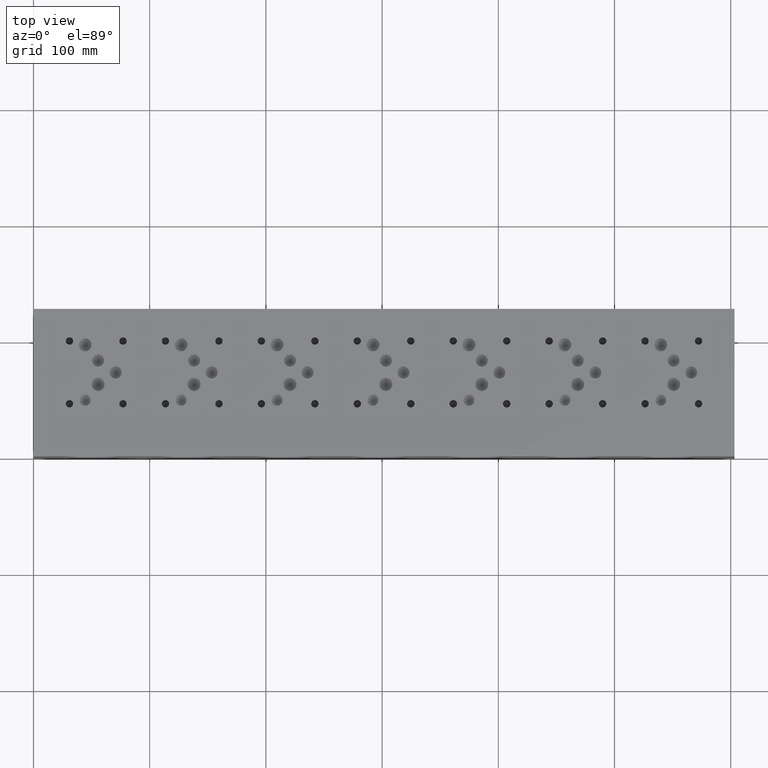
[diagram: clean part render]
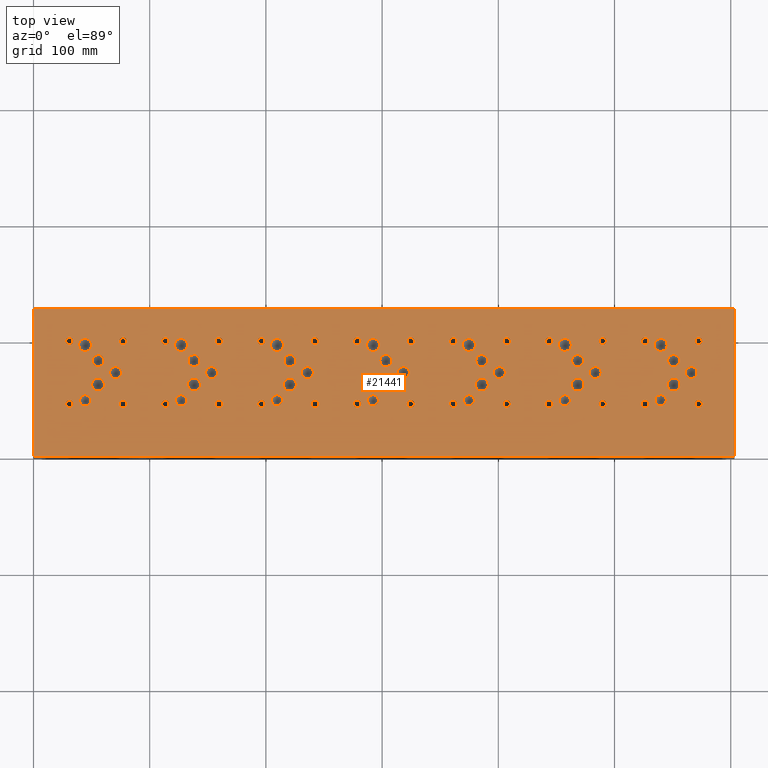
[diagram: same view with one face highlighted and labeled with its STEP entity id]
A machine part, top view. The second image highlights one B-rep face of the part: STEP entity #21441.
In plain terms, the highlighted planar face has unit normal (0, 0, 1).
Its self-contained STEP definition (entity closure, byte-faithful):
#803=CIRCLE('',#22593,4.7625);
#804=CIRCLE('',#22594,4.7625);
#807=CIRCLE('',#22599,4.7625);
#808=CIRCLE('',#22600,4.7625);
#811=CIRCLE('',#22605,4.7625);
#812=CIRCLE('',#22606,4.7625);
#815=CIRCLE('',#22611,4.7625);
#816=CIRCLE('',#22612,4.7625);
#819=CIRCLE('',#22617,4.7625);
#820=CIRCLE('',#22618,4.7625);
#823=CIRCLE('',#22623,4.7625);
#824=CIRCLE('',#22624,4.7625);
#827=CIRCLE('',#22629,4.7625);
#828=CIRCLE('',#22630,4.7625);
#831=CIRCLE('',#22635,5.5626);
#832=CIRCLE('',#22636,5.5626);
#835=CIRCLE('',#22641,5.5626);
#836=CIRCLE('',#22642,5.5626);
#839=CIRCLE('',#22647,5.5626);
#840=CIRCLE('',#22648,5.5626);
#843=CIRCLE('',#22653,5.5626);
#844=CIRCLE('',#22654,5.5626);
#847=CIRCLE('',#22659,5.5626);
#848=CIRCLE('',#22660,5.5626);
#851=CIRCLE('',#22665,5.5626);
#852=CIRCLE('',#22666,5.5626);
#855=CIRCLE('',#22671,5.5626);
#856=CIRCLE('',#22672,5.5626);
#859=CIRCLE('',#22677,5.5626);
#860=CIRCLE('',#22678,5.5626);
#863=CIRCLE('',#22683,5.5626);
#864=CIRCLE('',#22684,5.5626);
#867=CIRCLE('',#22689,5.5626);
#868=CIRCLE('',#22690,5.5626);
#871=CIRCLE('',#22695,5.5626);
#872=CIRCLE('',#22696,5.5626);
#875=CIRCLE('',#22701,5.5626);
#876=CIRCLE('',#22702,5.5626);
#879=CIRCLE('',#22707,5.5626);
#880=CIRCLE('',#22708,5.5626);
#883=CIRCLE('',#22713,5.5626);
#884=CIRCLE('',#22714,5.5626);
#887=CIRCLE('',#22719,5.1562);
#888=CIRCLE('',#22720,5.1562);
#891=CIRCLE('',#22725,5.1562);
#892=CIRCLE('',#22726,5.1562);
#895=CIRCLE('',#22731,5.1562);
#896=CIRCLE('',#22732,5.1562);
#899=CIRCLE('',#22737,5.1562);
#900=CIRCLE('',#22738,5.1562);
#903=CIRCLE('',#22743,5.1562);
#904=CIRCLE('',#22744,5.1562);
#907=CIRCLE('',#22749,5.1562);
#908=CIRCLE('',#22750,5.1562);
#911=CIRCLE('',#22755,5.1562);
#912=CIRCLE('',#22756,5.1562);
#915=CIRCLE('',#22761,5.1562);
#916=CIRCLE('',#22762,5.1562);
#919=CIRCLE('',#22767,5.1562);
#920=CIRCLE('',#22768,5.1562);
#923=CIRCLE('',#22773,5.1562);
#924=CIRCLE('',#22774,5.1562);
#927=CIRCLE('',#22779,5.1562);
#928=CIRCLE('',#22780,5.1562);
#931=CIRCLE('',#22785,5.1562);
#932=CIRCLE('',#22786,5.1562);
#935=CIRCLE('',#22791,5.1562);
#936=CIRCLE('',#22792,5.1562);
#939=CIRCLE('',#22797,5.1562);
#940=CIRCLE('',#22798,5.1562);
#946=CIRCLE('',#22807,3.175);
#947=CIRCLE('',#22808,3.175);
#953=CIRCLE('',#22818,3.175);
#954=CIRCLE('',#22819,3.175);
#960=CIRCLE('',#22829,3.175);
#961=CIRCLE('',#22830,3.175);
#967=CIRCLE('',#22840,3.175);
#968=CIRCLE('',#22841,3.175);
#974=CIRCLE('',#22851,3.175);
#975=CIRCLE('',#22852,3.175);
#981=CIRCLE('',#22862,3.175);
#982=CIRCLE('',#22863,3.175);
#988=CIRCLE('',#22873,3.175);
#989=CIRCLE('',#22874,3.175);
#995=CIRCLE('',#22884,3.175);
#996=CIRCLE('',#22885,3.175);
#1002=CIRCLE('',#22895,3.175);
#1003=CIRCLE('',#22896,3.175);
#1009=CIRCLE('',#22906,3.175);
#1010=CIRCLE('',#22907,3.175);
#1016=CIRCLE('',#22917,3.175);
#1017=CIRCLE('',#22918,3.175);
#1023=CIRCLE('',#22928,3.175);
#1024=CIRCLE('',#22929,3.175);
#1030=CIRCLE('',#22939,3.175);
#1031=CIRCLE('',#22940,3.175);
#1037=CIRCLE('',#22950,3.175);
#1038=CIRCLE('',#22951,3.175);
#1044=CIRCLE('',#22961,3.175);
#1045=CIRCLE('',#22962,3.175);
#1051=CIRCLE('',#22972,3.175);
#1052=CIRCLE('',#22973,3.175);
#1058=CIRCLE('',#22983,3.175);
#1059=CIRCLE('',#22984,3.175);
#1065=CIRCLE('',#22994,3.175);
#1066=CIRCLE('',#22995,3.175);
#1072=CIRCLE('',#23005,3.175);
#1073=CIRCLE('',#23006,3.175);
#1079=CIRCLE('',#23016,3.175);
#1080=CIRCLE('',#23017,3.175);
#1086=CIRCLE('',#23027,3.175);
#1087=CIRCLE('',#23028,3.175);
#1093=CIRCLE('',#23038,3.175);
#1094=CIRCLE('',#23039,3.175);
#1100=CIRCLE('',#23049,3.175);
#1101=CIRCLE('',#23050,3.175);
#1107=CIRCLE('',#23060,3.175);
#1108=CIRCLE('',#23061,3.175);
#1114=CIRCLE('',#23071,3.175);
#1115=CIRCLE('',#23072,3.175);
#1121=CIRCLE('',#23082,3.175);
#1122=CIRCLE('',#23083,3.175);
#1128=CIRCLE('',#23093,3.175);
#1129=CIRCLE('',#23094,3.175);
#1135=CIRCLE('',#23104,3.175);
#1136=CIRCLE('',#23105,3.175);
#1298=FACE_BOUND('',#4480,.T.);
#1299=FACE_BOUND('',#4481,.T.);
#1300=FACE_BOUND('',#4482,.T.);
#1301=FACE_BOUND('',#4483,.T.);
#1302=FACE_BOUND('',#4484,.T.);
#1303=FACE_BOUND('',#4485,.T.);
#1304=FACE_BOUND('',#4486,.T.);
#1305=FACE_BOUND('',#4487,.T.);
#1306=FACE_BOUND('',#4488,.T.);
#1307=FACE_BOUND('',#4489,.T.);
#1308=FACE_BOUND('',#4490,.T.);
#1309=FACE_BOUND('',#4491,.T.);
#1310=FACE_BOUND('',#4492,.T.);
#1311=FACE_BOUND('',#4493,.T.);
#1312=FACE_BOUND('',#4494,.T.);
#1313=FACE_BOUND('',#4495,.T.);
#1314=FACE_BOUND('',#4496,.T.);
#1315=FACE_BOUND('',#4497,.T.);
#1316=FACE_BOUND('',#4498,.T.);
#1317=FACE_BOUND('',#4499,.T.);
#1318=FACE_BOUND('',#4500,.T.);
#1319=FACE_BOUND('',#4501,.T.);
#1320=FACE_BOUND('',#4502,.T.);
#1321=FACE_BOUND('',#4503,.T.);
#1322=FACE_BOUND('',#4504,.T.);
#1323=FACE_BOUND('',#4505,.T.);
#1324=FACE_BOUND('',#4506,.T.);
#1325=FACE_BOUND('',#4507,.T.);
#1326=FACE_BOUND('',#4508,.T.);
#1327=FACE_BOUND('',#4509,.T.);
#1328=FACE_BOUND('',#4510,.T.);
#1329=FACE_BOUND('',#4511,.T.);
#1330=FACE_BOUND('',#4512,.T.);
#1331=FACE_BOUND('',#4513,.T.);
#1332=FACE_BOUND('',#4514,.T.);
#1333=FACE_BOUND('',#4515,.T.);
#1334=FACE_BOUND('',#4516,.T.);
#1335=FACE_BOUND('',#4517,.T.);
#1336=FACE_BOUND('',#4518,.T.);
#1337=FACE_BOUND('',#4519,.T.);
#1338=FACE_BOUND('',#4520,.T.);
#1339=FACE_BOUND('',#4521,.T.);
#1340=FACE_BOUND('',#4522,.T.);
#1341=FACE_BOUND('',#4523,.T.);
#1342=FACE_BOUND('',#4524,.T.);
#1343=FACE_BOUND('',#4525,.T.);
#1344=FACE_BOUND('',#4526,.T.);
#1345=FACE_BOUND('',#4527,.T.);
#1346=FACE_BOUND('',#4528,.T.);
#1347=FACE_BOUND('',#4529,.T.);
#1348=FACE_BOUND('',#4530,.T.);
#1349=FACE_BOUND('',#4531,.T.);
#1350=FACE_BOUND('',#4532,.T.);
#1351=FACE_BOUND('',#4533,.T.);
#1352=FACE_BOUND('',#4534,.T.);
#1353=FACE_BOUND('',#4535,.T.);
#1354=FACE_BOUND('',#4536,.T.);
#1355=FACE_BOUND('',#4537,.T.);
#1356=FACE_BOUND('',#4538,.T.);
#1357=FACE_BOUND('',#4539,.T.);
#1358=FACE_BOUND('',#4540,.T.);
#1359=FACE_BOUND('',#4541,.T.);
#1360=FACE_BOUND('',#4542,.T.);
#3182=FACE_OUTER_BOUND('',#4479,.T.);
#4479=EDGE_LOOP('',(#18988,#18989,#18990,#18991));
#4480=EDGE_LOOP('',(#18992,#18993));
#4481=EDGE_LOOP('',(#18994,#18995));
#4482=EDGE_LOOP('',(#18996,#18997));
#4483=EDGE_LOOP('',(#18998,#18999));
#4484=EDGE_LOOP('',(#19000,#19001));
#4485=EDGE_LOOP('',(#19002,#19003));
#4486=EDGE_LOOP('',(#19004,#19005));
#4487=EDGE_LOOP('',(#19006,#19007));
#4488=EDGE_LOOP('',(#19008,#19009));
#4489=EDGE_LOOP('',(#19010,#19011));
#4490=EDGE_LOOP('',(#19012,#19013));
#4491=EDGE_LOOP('',(#19014,#19015));
#4492=EDGE_LOOP('',(#19016,#19017));
#4493=EDGE_LOOP('',(#19018,#19019));
#4494=EDGE_LOOP('',(#19020,#19021));
#4495=EDGE_LOOP('',(#19022,#19023));
#4496=EDGE_LOOP('',(#19024,#19025));
#4497=EDGE_LOOP('',(#19026,#19027));
#4498=EDGE_LOOP('',(#19028,#19029));
#4499=EDGE_LOOP('',(#19030,#19031));
#4500=EDGE_LOOP('',(#19032,#19033));
#4501=EDGE_LOOP('',(#19034,#19035));
#4502=EDGE_LOOP('',(#19036,#19037));
#4503=EDGE_LOOP('',(#19038,#19039));
#4504=EDGE_LOOP('',(#19040,#19041));
#4505=EDGE_LOOP('',(#19042,#19043));
#4506=EDGE_LOOP('',(#19044,#19045));
#4507=EDGE_LOOP('',(#19046,#19047));
#4508=EDGE_LOOP('',(#19048,#19049));
#4509=EDGE_LOOP('',(#19050,#19051));
#4510=EDGE_LOOP('',(#19052,#19053));
#4511=EDGE_LOOP('',(#19054,#19055));
#4512=EDGE_LOOP('',(#19056,#19057));
#4513=EDGE_LOOP('',(#19058,#19059));
#4514=EDGE_LOOP('',(#19060,#19061));
#4515=EDGE_LOOP('',(#19062,#19063));
#4516=EDGE_LOOP('',(#19064,#19065));
#4517=EDGE_LOOP('',(#19066,#19067));
#4518=EDGE_LOOP('',(#19068,#19069));
#4519=EDGE_LOOP('',(#19070,#19071));
#4520=EDGE_LOOP('',(#19072,#19073));
#4521=EDGE_LOOP('',(#19074,#19075));
#4522=EDGE_LOOP('',(#19076,#19077));
#4523=EDGE_LOOP('',(#19078,#19079));
#4524=EDGE_LOOP('',(#19080,#19081));
#4525=EDGE_LOOP('',(#19082,#19083));
#4526=EDGE_LOOP('',(#19084,#19085));
#4527=EDGE_LOOP('',(#19086,#19087));
#4528=EDGE_LOOP('',(#19088,#19089));
#4529=EDGE_LOOP('',(#19090,#19091));
#4530=EDGE_LOOP('',(#19092,#19093));
#4531=EDGE_LOOP('',(#19094,#19095));
#4532=EDGE_LOOP('',(#19096,#19097));
#4533=EDGE_LOOP('',(#19098,#19099));
#4534=EDGE_LOOP('',(#19100,#19101));
#4535=EDGE_LOOP('',(#19102,#19103));
#4536=EDGE_LOOP('',(#19104,#19105));
#4537=EDGE_LOOP('',(#19106,#19107));
#4538=EDGE_LOOP('',(#19108,#19109));
#4539=EDGE_LOOP('',(#19110,#19111));
#4540=EDGE_LOOP('',(#19112,#19113));
#4541=EDGE_LOOP('',(#19114,#19115));
#4542=EDGE_LOOP('',(#19116,#19117));
#4601=LINE('',#28457,#6379);
#4664=LINE('',#28736,#6442);
#4955=LINE('',#30919,#6733);
#5978=LINE('',#35247,#7756);
#6379=VECTOR('',#23210,10.);
#6442=VECTOR('',#23325,10.);
#6733=VECTOR('',#23780,10.);
#7756=VECTOR('',#25749,10.);
#8150=VERTEX_POINT('',#28454);
#8151=VERTEX_POINT('',#28456);
#8212=VERTEX_POINT('',#28733);
#8213=VERTEX_POINT('',#28735);
#9777=VERTEX_POINT('',#36302);
#9778=VERTEX_POINT('',#36303);
#9782=VERTEX_POINT('',#36315);
#9783=VERTEX_POINT('',#36316);
#9787=VERTEX_POINT('',#36328);
#9788=VERTEX_POINT('',#36329);
#9792=VERTEX_POINT('',#36341);
#9793=VERTEX_POINT('',#36342);
#9797=VERTEX_POINT('',#36354);
#9798=VERTEX_POINT('',#36355);
#9802=VERTEX_POINT('',#36367);
#9803=VERTEX_POINT('',#36368);
#9807=VERTEX_POINT('',#36380);
#9808=VERTEX_POINT('',#36381);
#9812=VERTEX_POINT('',#36393);
#9813=VERTEX_POINT('',#36394);
#9817=VERTEX_POINT('',#36406);
#9818=VERTEX_POINT('',#36407);
#9822=VERTEX_POINT('',#36419);
#9823=VERTEX_POINT('',#36420);
#9827=VERTEX_POINT('',#36432);
#9828=VERTEX_POINT('',#36433);
#9832=VERTEX_POINT('',#36445);
#9833=VERTEX_POINT('',#36446);
#9837=VERTEX_POINT('',#36458);
#9838=VERTEX_POINT('',#36459);
#9842=VERTEX_POINT('',#36471);
#9843=VERTEX_POINT('',#36472);
#9847=VERTEX_POINT('',#36484);
#9848=VERTEX_POINT('',#36485);
#9852=VERTEX_POINT('',#36497);
#9853=VERTEX_POINT('',#36498);
#9857=VERTEX_POINT('',#36510);
#9858=VERTEX_POINT('',#36511);
#9862=VERTEX_POINT('',#36523);
#9863=VERTEX_POINT('',#36524);
#9867=VERTEX_POINT('',#36536);
#9868=VERTEX_POINT('',#36537);
#9872=VERTEX_POINT('',#36549);
#9873=VERTEX_POINT('',#36550);
#9877=VERTEX_POINT('',#36562);
#9878=VERTEX_POINT('',#36563);
#9882=VERTEX_POINT('',#36575);
#9883=VERTEX_POINT('',#36576);
#9887=VERTEX_POINT('',#36588);
#9888=VERTEX_POINT('',#36589);
#9892=VERTEX_POINT('',#36601);
#9893=VERTEX_POINT('',#36602);
#9897=VERTEX_POINT('',#36614);
#9898=VERTEX_POINT('',#36615);
#9902=VERTEX_POINT('',#36627);
#9903=VERTEX_POINT('',#36628);
#9907=VERTEX_POINT('',#36640);
#9908=VERTEX_POINT('',#36641);
#9912=VERTEX_POINT('',#36653);
#9913=VERTEX_POINT('',#36654);
#9917=VERTEX_POINT('',#36666);
#9918=VERTEX_POINT('',#36667);
#9922=VERTEX_POINT('',#36679);
#9923=VERTEX_POINT('',#36680);
#9927=VERTEX_POINT('',#36692);
#9928=VERTEX_POINT('',#36693);
#9932=VERTEX_POINT('',#36705);
#9933=VERTEX_POINT('',#36706);
#9937=VERTEX_POINT('',#36718);
#9938=VERTEX_POINT('',#36719);
#9942=VERTEX_POINT('',#36731);
#9943=VERTEX_POINT('',#36732);
#9947=VERTEX_POINT('',#36744);
#9948=VERTEX_POINT('',#36745);
#9955=VERTEX_POINT('',#36764);
#9956=VERTEX_POINT('',#36765);
#9963=VERTEX_POINT('',#36786);
#9964=VERTEX_POINT('',#36787);
#9971=VERTEX_POINT('',#36808);
#9972=VERTEX_POINT('',#36809);
#9979=VERTEX_POINT('',#36830);
#9980=VERTEX_POINT('',#36831);
#9987=VERTEX_POINT('',#36852);
#9988=VERTEX_POINT('',#36853);
#9995=VERTEX_POINT('',#36874);
#9996=VERTEX_POINT('',#36875);
#10003=VERTEX_POINT('',#36896);
#10004=VERTEX_POINT('',#36897);
#10011=VERTEX_POINT('',#36918);
#10012=VERTEX_POINT('',#36919);
#10019=VERTEX_POINT('',#36940);
#10020=VERTEX_POINT('',#36941);
#10027=VERTEX_POINT('',#36962);
#10028=VERTEX_POINT('',#36963);
#10035=VERTEX_POINT('',#36984);
#10036=VERTEX_POINT('',#36985);
#10043=VERTEX_POINT('',#37006);
#10044=VERTEX_POINT('',#37007);
#10051=VERTEX_POINT('',#37028);
#10052=VERTEX_POINT('',#37029);
#10059=VERTEX_POINT('',#37050);
#10060=VERTEX_POINT('',#37051);
#10067=VERTEX_POINT('',#37072);
#10068=VERTEX_POINT('',#37073);
#10075=VERTEX_POINT('',#37094);
#10076=VERTEX_POINT('',#37095);
#10083=VERTEX_POINT('',#37116);
#10084=VERTEX_POINT('',#37117);
#10091=VERTEX_POINT('',#37138);
#10092=VERTEX_POINT('',#37139);
#10099=VERTEX_POINT('',#37160);
#10100=VERTEX_POINT('',#37161);
#10107=VERTEX_POINT('',#37182);
#10108=VERTEX_POINT('',#37183);
#10115=VERTEX_POINT('',#37204);
#10116=VERTEX_POINT('',#37205);
#10123=VERTEX_POINT('',#37226);
#10124=VERTEX_POINT('',#37227);
#10131=VERTEX_POINT('',#37248);
#10132=VERTEX_POINT('',#37249);
#10139=VERTEX_POINT('',#37270);
#10140=VERTEX_POINT('',#37271);
#10147=VERTEX_POINT('',#37292);
#10148=VERTEX_POINT('',#37293);
#10155=VERTEX_POINT('',#37314);
#10156=VERTEX_POINT('',#37315);
#10163=VERTEX_POINT('',#37336);
#10164=VERTEX_POINT('',#37337);
#10171=VERTEX_POINT('',#37358);
#10172=VERTEX_POINT('',#37359);
#10247=EDGE_CURVE('',#8151,#8150,#4601,.T.);
#10333=EDGE_CURVE('',#8213,#8212,#4664,.T.);
#10816=EDGE_CURVE('',#8212,#8151,#4955,.T.);
#12168=EDGE_CURVE('',#8150,#8213,#5978,.T.);
#12669=EDGE_CURVE('',#9777,#9778,#803,.T.);
#12670=EDGE_CURVE('',#9778,#9777,#804,.T.);
#12675=EDGE_CURVE('',#9782,#9783,#807,.T.);
#12676=EDGE_CURVE('',#9783,#9782,#808,.T.);
#12681=EDGE_CURVE('',#9787,#9788,#811,.T.);
#12682=EDGE_CURVE('',#9788,#9787,#812,.T.);
#12687=EDGE_CURVE('',#9792,#9793,#815,.T.);
#12688=EDGE_CURVE('',#9793,#9792,#816,.T.);
#12693=EDGE_CURVE('',#9797,#9798,#819,.T.);
#12694=EDGE_CURVE('',#9798,#9797,#820,.T.);
#12699=EDGE_CURVE('',#9802,#9803,#823,.T.);
#12700=EDGE_CURVE('',#9803,#9802,#824,.T.);
#12705=EDGE_CURVE('',#9807,#9808,#827,.T.);
#12706=EDGE_CURVE('',#9808,#9807,#828,.T.);
#12711=EDGE_CURVE('',#9812,#9813,#831,.T.);
#12712=EDGE_CURVE('',#9813,#9812,#832,.T.);
#12717=EDGE_CURVE('',#9817,#9818,#835,.T.);
#12718=EDGE_CURVE('',#9818,#9817,#836,.T.);
#12723=EDGE_CURVE('',#9822,#9823,#839,.T.);
#12724=EDGE_CURVE('',#9823,#9822,#840,.T.);
#12729=EDGE_CURVE('',#9827,#9828,#843,.T.);
#12730=EDGE_CURVE('',#9828,#9827,#844,.T.);
#12735=EDGE_CURVE('',#9832,#9833,#847,.T.);
#12736=EDGE_CURVE('',#9833,#9832,#848,.T.);
#12741=EDGE_CURVE('',#9837,#9838,#851,.T.);
#12742=EDGE_CURVE('',#9838,#9837,#852,.T.);
#12747=EDGE_CURVE('',#9842,#9843,#855,.T.);
#12748=EDGE_CURVE('',#9843,#9842,#856,.T.);
#12753=EDGE_CURVE('',#9847,#9848,#859,.T.);
#12754=EDGE_CURVE('',#9848,#9847,#860,.T.);
#12759=EDGE_CURVE('',#9852,#9853,#863,.T.);
#12760=EDGE_CURVE('',#9853,#9852,#864,.T.);
#12765=EDGE_CURVE('',#9857,#9858,#867,.T.);
#12766=EDGE_CURVE('',#9858,#9857,#868,.T.);
#12771=EDGE_CURVE('',#9862,#9863,#871,.T.);
#12772=EDGE_CURVE('',#9863,#9862,#872,.T.);
#12777=EDGE_CURVE('',#9867,#9868,#875,.T.);
#12778=EDGE_CURVE('',#9868,#9867,#876,.T.);
#12783=EDGE_CURVE('',#9872,#9873,#879,.T.);
#12784=EDGE_CURVE('',#9873,#9872,#880,.T.);
#12789=EDGE_CURVE('',#9877,#9878,#883,.T.);
#12790=EDGE_CURVE('',#9878,#9877,#884,.T.);
#12795=EDGE_CURVE('',#9882,#9883,#887,.T.);
#12796=EDGE_CURVE('',#9883,#9882,#888,.T.);
#12801=EDGE_CURVE('',#9887,#9888,#891,.T.);
#12802=EDGE_CURVE('',#9888,#9887,#892,.T.);
#12807=EDGE_CURVE('',#9892,#9893,#895,.T.);
#12808=EDGE_CURVE('',#9893,#9892,#896,.T.);
#12813=EDGE_CURVE('',#9897,#9898,#899,.T.);
#12814=EDGE_CURVE('',#9898,#9897,#900,.T.);
#12819=EDGE_CURVE('',#9902,#9903,#903,.T.);
#12820=EDGE_CURVE('',#9903,#9902,#904,.T.);
#12825=EDGE_CURVE('',#9907,#9908,#907,.T.);
#12826=EDGE_CURVE('',#9908,#9907,#908,.T.);
#12831=EDGE_CURVE('',#9912,#9913,#911,.T.);
#12832=EDGE_CURVE('',#9913,#9912,#912,.T.);
#12837=EDGE_CURVE('',#9917,#9918,#915,.T.);
#12838=EDGE_CURVE('',#9918,#9917,#916,.T.);
#12843=EDGE_CURVE('',#9922,#9923,#919,.T.);
#12844=EDGE_CURVE('',#9923,#9922,#920,.T.);
#12849=EDGE_CURVE('',#9927,#9928,#923,.T.);
#12850=EDGE_CURVE('',#9928,#9927,#924,.T.);
#12855=EDGE_CURVE('',#9932,#9933,#927,.T.);
#12856=EDGE_CURVE('',#9933,#9932,#928,.T.);
#12861=EDGE_CURVE('',#9937,#9938,#931,.T.);
#12862=EDGE_CURVE('',#9938,#9937,#932,.T.);
#12867=EDGE_CURVE('',#9942,#9943,#935,.T.);
#12868=EDGE_CURVE('',#9943,#9942,#936,.T.);
#12873=EDGE_CURVE('',#9947,#9948,#939,.T.);
#12874=EDGE_CURVE('',#9948,#9947,#940,.T.);
#12882=EDGE_CURVE('',#9955,#9956,#946,.T.);
#12883=EDGE_CURVE('',#9956,#9955,#947,.T.);
#12892=EDGE_CURVE('',#9963,#9964,#953,.T.);
#12893=EDGE_CURVE('',#9964,#9963,#954,.T.);
#12902=EDGE_CURVE('',#9971,#9972,#960,.T.);
#12903=EDGE_CURVE('',#9972,#9971,#961,.T.);
#12912=EDGE_CURVE('',#9979,#9980,#967,.T.);
#12913=EDGE_CURVE('',#9980,#9979,#968,.T.);
#12922=EDGE_CURVE('',#9987,#9988,#974,.T.);
#12923=EDGE_CURVE('',#9988,#9987,#975,.T.);
#12932=EDGE_CURVE('',#9995,#9996,#981,.T.);
#12933=EDGE_CURVE('',#9996,#9995,#982,.T.);
#12942=EDGE_CURVE('',#10003,#10004,#988,.T.);
#12943=EDGE_CURVE('',#10004,#10003,#989,.T.);
#12952=EDGE_CURVE('',#10011,#10012,#995,.T.);
#12953=EDGE_CURVE('',#10012,#10011,#996,.T.);
#12962=EDGE_CURVE('',#10019,#10020,#1002,.T.);
#12963=EDGE_CURVE('',#10020,#10019,#1003,.T.);
#12972=EDGE_CURVE('',#10027,#10028,#1009,.T.);
#12973=EDGE_CURVE('',#10028,#10027,#1010,.T.);
#12982=EDGE_CURVE('',#10035,#10036,#1016,.T.);
#12983=EDGE_CURVE('',#10036,#10035,#1017,.T.);
#12992=EDGE_CURVE('',#10043,#10044,#1023,.T.);
#12993=EDGE_CURVE('',#10044,#10043,#1024,.T.);
#13002=EDGE_CURVE('',#10051,#10052,#1030,.T.);
#13003=EDGE_CURVE('',#10052,#10051,#1031,.T.);
#13012=EDGE_CURVE('',#10059,#10060,#1037,.T.);
#13013=EDGE_CURVE('',#10060,#10059,#1038,.T.);
#13022=EDGE_CURVE('',#10067,#10068,#1044,.T.);
#13023=EDGE_CURVE('',#10068,#10067,#1045,.T.);
#13032=EDGE_CURVE('',#10075,#10076,#1051,.T.);
#13033=EDGE_CURVE('',#10076,#10075,#1052,.T.);
#13042=EDGE_CURVE('',#10083,#10084,#1058,.T.);
#13043=EDGE_CURVE('',#10084,#10083,#1059,.T.);
#13052=EDGE_CURVE('',#10091,#10092,#1065,.T.);
#13053=EDGE_CURVE('',#10092,#10091,#1066,.T.);
#13062=EDGE_CURVE('',#10099,#10100,#1072,.T.);
#13063=EDGE_CURVE('',#10100,#10099,#1073,.T.);
#13072=EDGE_CURVE('',#10107,#10108,#1079,.T.);
#13073=EDGE_CURVE('',#10108,#10107,#1080,.T.);
#13082=EDGE_CURVE('',#10115,#10116,#1086,.T.);
#13083=EDGE_CURVE('',#10116,#10115,#1087,.T.);
#13092=EDGE_CURVE('',#10123,#10124,#1093,.T.);
#13093=EDGE_CURVE('',#10124,#10123,#1094,.T.);
#13102=EDGE_CURVE('',#10131,#10132,#1100,.T.);
#13103=EDGE_CURVE('',#10132,#10131,#1101,.T.);
#13112=EDGE_CURVE('',#10139,#10140,#1107,.T.);
#13113=EDGE_CURVE('',#10140,#10139,#1108,.T.);
#13122=EDGE_CURVE('',#10147,#10148,#1114,.T.);
#13123=EDGE_CURVE('',#10148,#10147,#1115,.T.);
#13132=EDGE_CURVE('',#10155,#10156,#1121,.T.);
#13133=EDGE_CURVE('',#10156,#10155,#1122,.T.);
#13142=EDGE_CURVE('',#10163,#10164,#1128,.T.);
#13143=EDGE_CURVE('',#10164,#10163,#1129,.T.);
#13152=EDGE_CURVE('',#10171,#10172,#1135,.T.);
#13153=EDGE_CURVE('',#10172,#10171,#1136,.T.);
#18988=ORIENTED_EDGE('',*,*,#10816,.T.);
#18989=ORIENTED_EDGE('',*,*,#10247,.T.);
#18990=ORIENTED_EDGE('',*,*,#12168,.T.);
#18991=ORIENTED_EDGE('',*,*,#10333,.T.);
#18992=ORIENTED_EDGE('',*,*,#12669,.T.);
#18993=ORIENTED_EDGE('',*,*,#12670,.T.);
#18994=ORIENTED_EDGE('',*,*,#12675,.T.);
#18995=ORIENTED_EDGE('',*,*,#12676,.T.);
#18996=ORIENTED_EDGE('',*,*,#12681,.T.);
#18997=ORIENTED_EDGE('',*,*,#12682,.T.);
#18998=ORIENTED_EDGE('',*,*,#12687,.T.);
#18999=ORIENTED_EDGE('',*,*,#12688,.T.);
#19000=ORIENTED_EDGE('',*,*,#12693,.T.);
#19001=ORIENTED_EDGE('',*,*,#12694,.T.);
#19002=ORIENTED_EDGE('',*,*,#12699,.T.);
#19003=ORIENTED_EDGE('',*,*,#12700,.T.);
#19004=ORIENTED_EDGE('',*,*,#12705,.T.);
#19005=ORIENTED_EDGE('',*,*,#12706,.T.);
#19006=ORIENTED_EDGE('',*,*,#12711,.T.);
#19007=ORIENTED_EDGE('',*,*,#12712,.T.);
#19008=ORIENTED_EDGE('',*,*,#12717,.T.);
#19009=ORIENTED_EDGE('',*,*,#12718,.T.);
#19010=ORIENTED_EDGE('',*,*,#12723,.T.);
#19011=ORIENTED_EDGE('',*,*,#12724,.T.);
#19012=ORIENTED_EDGE('',*,*,#12729,.T.);
#19013=ORIENTED_EDGE('',*,*,#12730,.T.);
#19014=ORIENTED_EDGE('',*,*,#12735,.T.);
#19015=ORIENTED_EDGE('',*,*,#12736,.T.);
#19016=ORIENTED_EDGE('',*,*,#12741,.T.);
#19017=ORIENTED_EDGE('',*,*,#12742,.T.);
#19018=ORIENTED_EDGE('',*,*,#12747,.T.);
#19019=ORIENTED_EDGE('',*,*,#12748,.T.);
#19020=ORIENTED_EDGE('',*,*,#12753,.T.);
#19021=ORIENTED_EDGE('',*,*,#12754,.T.);
#19022=ORIENTED_EDGE('',*,*,#12759,.T.);
#19023=ORIENTED_EDGE('',*,*,#12760,.T.);
#19024=ORIENTED_EDGE('',*,*,#12765,.T.);
#19025=ORIENTED_EDGE('',*,*,#12766,.T.);
#19026=ORIENTED_EDGE('',*,*,#12771,.T.);
#19027=ORIENTED_EDGE('',*,*,#12772,.T.);
#19028=ORIENTED_EDGE('',*,*,#12777,.T.);
#19029=ORIENTED_EDGE('',*,*,#12778,.T.);
#19030=ORIENTED_EDGE('',*,*,#12783,.T.);
#19031=ORIENTED_EDGE('',*,*,#12784,.T.);
#19032=ORIENTED_EDGE('',*,*,#12789,.T.);
#19033=ORIENTED_EDGE('',*,*,#12790,.T.);
#19034=ORIENTED_EDGE('',*,*,#12795,.T.);
#19035=ORIENTED_EDGE('',*,*,#12796,.T.);
#19036=ORIENTED_EDGE('',*,*,#12801,.T.);
#19037=ORIENTED_EDGE('',*,*,#12802,.T.);
#19038=ORIENTED_EDGE('',*,*,#12807,.T.);
#19039=ORIENTED_EDGE('',*,*,#12808,.T.);
#19040=ORIENTED_EDGE('',*,*,#12813,.T.);
#19041=ORIENTED_EDGE('',*,*,#12814,.T.);
#19042=ORIENTED_EDGE('',*,*,#12819,.T.);
#19043=ORIENTED_EDGE('',*,*,#12820,.T.);
#19044=ORIENTED_EDGE('',*,*,#12825,.T.);
#19045=ORIENTED_EDGE('',*,*,#12826,.T.);
#19046=ORIENTED_EDGE('',*,*,#12831,.T.);
#19047=ORIENTED_EDGE('',*,*,#12832,.T.);
#19048=ORIENTED_EDGE('',*,*,#12837,.T.);
#19049=ORIENTED_EDGE('',*,*,#12838,.T.);
#19050=ORIENTED_EDGE('',*,*,#12843,.T.);
#19051=ORIENTED_EDGE('',*,*,#12844,.T.);
#19052=ORIENTED_EDGE('',*,*,#12849,.T.);
#19053=ORIENTED_EDGE('',*,*,#12850,.T.);
#19054=ORIENTED_EDGE('',*,*,#12855,.T.);
#19055=ORIENTED_EDGE('',*,*,#12856,.T.);
#19056=ORIENTED_EDGE('',*,*,#12861,.T.);
#19057=ORIENTED_EDGE('',*,*,#12862,.T.);
#19058=ORIENTED_EDGE('',*,*,#12867,.T.);
#19059=ORIENTED_EDGE('',*,*,#12868,.T.);
#19060=ORIENTED_EDGE('',*,*,#12873,.T.);
#19061=ORIENTED_EDGE('',*,*,#12874,.T.);
#19062=ORIENTED_EDGE('',*,*,#12882,.T.);
#19063=ORIENTED_EDGE('',*,*,#12883,.T.);
#19064=ORIENTED_EDGE('',*,*,#12892,.T.);
#19065=ORIENTED_EDGE('',*,*,#12893,.T.);
#19066=ORIENTED_EDGE('',*,*,#12902,.T.);
#19067=ORIENTED_EDGE('',*,*,#12903,.T.);
#19068=ORIENTED_EDGE('',*,*,#12912,.T.);
#19069=ORIENTED_EDGE('',*,*,#12913,.T.);
#19070=ORIENTED_EDGE('',*,*,#12922,.T.);
#19071=ORIENTED_EDGE('',*,*,#12923,.T.);
#19072=ORIENTED_EDGE('',*,*,#12932,.T.);
#19073=ORIENTED_EDGE('',*,*,#12933,.T.);
#19074=ORIENTED_EDGE('',*,*,#12942,.T.);
#19075=ORIENTED_EDGE('',*,*,#12943,.T.);
#19076=ORIENTED_EDGE('',*,*,#12952,.T.);
#19077=ORIENTED_EDGE('',*,*,#12953,.T.);
#19078=ORIENTED_EDGE('',*,*,#12962,.T.);
#19079=ORIENTED_EDGE('',*,*,#12963,.T.);
#19080=ORIENTED_EDGE('',*,*,#12972,.T.);
#19081=ORIENTED_EDGE('',*,*,#12973,.T.);
#19082=ORIENTED_EDGE('',*,*,#12982,.T.);
#19083=ORIENTED_EDGE('',*,*,#12983,.T.);
#19084=ORIENTED_EDGE('',*,*,#12992,.T.);
#19085=ORIENTED_EDGE('',*,*,#12993,.T.);
#19086=ORIENTED_EDGE('',*,*,#13002,.T.);
#19087=ORIENTED_EDGE('',*,*,#13003,.T.);
#19088=ORIENTED_EDGE('',*,*,#13012,.T.);
#19089=ORIENTED_EDGE('',*,*,#13013,.T.);
#19090=ORIENTED_EDGE('',*,*,#13022,.T.);
#19091=ORIENTED_EDGE('',*,*,#13023,.T.);
#19092=ORIENTED_EDGE('',*,*,#13032,.T.);
#19093=ORIENTED_EDGE('',*,*,#13033,.T.);
#19094=ORIENTED_EDGE('',*,*,#13042,.T.);
#19095=ORIENTED_EDGE('',*,*,#13043,.T.);
#19096=ORIENTED_EDGE('',*,*,#13052,.T.);
#19097=ORIENTED_EDGE('',*,*,#13053,.T.);
#19098=ORIENTED_EDGE('',*,*,#13062,.T.);
#19099=ORIENTED_EDGE('',*,*,#13063,.T.);
#19100=ORIENTED_EDGE('',*,*,#13072,.T.);
#19101=ORIENTED_EDGE('',*,*,#13073,.T.);
#19102=ORIENTED_EDGE('',*,*,#13082,.T.);
#19103=ORIENTED_EDGE('',*,*,#13083,.T.);
#19104=ORIENTED_EDGE('',*,*,#13092,.T.);
#19105=ORIENTED_EDGE('',*,*,#13093,.T.);
#19106=ORIENTED_EDGE('',*,*,#13102,.T.);
#19107=ORIENTED_EDGE('',*,*,#13103,.T.);
#19108=ORIENTED_EDGE('',*,*,#13112,.T.);
#19109=ORIENTED_EDGE('',*,*,#13113,.T.);
#19110=ORIENTED_EDGE('',*,*,#13122,.T.);
#19111=ORIENTED_EDGE('',*,*,#13123,.T.);
#19112=ORIENTED_EDGE('',*,*,#13132,.T.);
#19113=ORIENTED_EDGE('',*,*,#13133,.T.);
#19114=ORIENTED_EDGE('',*,*,#13142,.T.);
#19115=ORIENTED_EDGE('',*,*,#13143,.T.);
#19116=ORIENTED_EDGE('',*,*,#13152,.T.);
#19117=ORIENTED_EDGE('',*,*,#13153,.T.);
#19651=PLANE('',#23109);
#21441=ADVANCED_FACE('',(#3182,#1298,#1299,#1300,#1301,#1302,#1303,#1304,
#1305,#1306,#1307,#1308,#1309,#1310,#1311,#1312,#1313,#1314,#1315,#1316,
#1317,#1318,#1319,#1320,#1321,#1322,#1323,#1324,#1325,#1326,#1327,#1328,
#1329,#1330,#1331,#1332,#1333,#1334,#1335,#1336,#1337,#1338,#1339,#1340,
#1341,#1342,#1343,#1344,#1345,#1346,#1347,#1348,#1349,#1350,#1351,#1352,
#1353,#1354,#1355,#1356,#1357,#1358,#1359,#1360),#19651,.T.);
#22593=AXIS2_PLACEMENT_3D('',#36304,#27010,#27011);
#22594=AXIS2_PLACEMENT_3D('',#36305,#27012,#27013);
#22599=AXIS2_PLACEMENT_3D('',#36317,#27024,#27025);
#22600=AXIS2_PLACEMENT_3D('',#36318,#27026,#27027);
#22605=AXIS2_PLACEMENT_3D('',#36330,#27038,#27039);
#22606=AXIS2_PLACEMENT_3D('',#36331,#27040,#27041);
#22611=AXIS2_PLACEMENT_3D('',#36343,#27052,#27053);
#22612=AXIS2_PLACEMENT_3D('',#36344,#27054,#27055);
#22617=AXIS2_PLACEMENT_3D('',#36356,#27066,#27067);
#22618=AXIS2_PLACEMENT_3D('',#36357,#27068,#27069);
#22623=AXIS2_PLACEMENT_3D('',#36369,#27080,#27081);
#22624=AXIS2_PLACEMENT_3D('',#36370,#27082,#27083);
#22629=AXIS2_PLACEMENT_3D('',#36382,#27094,#27095);
#22630=AXIS2_PLACEMENT_3D('',#36383,#27096,#27097);
#22635=AXIS2_PLACEMENT_3D('',#36395,#27108,#27109);
#22636=AXIS2_PLACEMENT_3D('',#36396,#27110,#27111);
#22641=AXIS2_PLACEMENT_3D('',#36408,#27122,#27123);
#22642=AXIS2_PLACEMENT_3D('',#36409,#27124,#27125);
#22647=AXIS2_PLACEMENT_3D('',#36421,#27136,#27137);
#22648=AXIS2_PLACEMENT_3D('',#36422,#27138,#27139);
#22653=AXIS2_PLACEMENT_3D('',#36434,#27150,#27151);
#22654=AXIS2_PLACEMENT_3D('',#36435,#27152,#27153);
#22659=AXIS2_PLACEMENT_3D('',#36447,#27164,#27165);
#22660=AXIS2_PLACEMENT_3D('',#36448,#27166,#27167);
#22665=AXIS2_PLACEMENT_3D('',#36460,#27178,#27179);
#22666=AXIS2_PLACEMENT_3D('',#36461,#27180,#27181);
#22671=AXIS2_PLACEMENT_3D('',#36473,#27192,#27193);
#22672=AXIS2_PLACEMENT_3D('',#36474,#27194,#27195);
#22677=AXIS2_PLACEMENT_3D('',#36486,#27206,#27207);
#22678=AXIS2_PLACEMENT_3D('',#36487,#27208,#27209);
#22683=AXIS2_PLACEMENT_3D('',#36499,#27220,#27221);
#22684=AXIS2_PLACEMENT_3D('',#36500,#27222,#27223);
#22689=AXIS2_PLACEMENT_3D('',#36512,#27234,#27235);
#22690=AXIS2_PLACEMENT_3D('',#36513,#27236,#27237);
#22695=AXIS2_PLACEMENT_3D('',#36525,#27248,#27249);
#22696=AXIS2_PLACEMENT_3D('',#36526,#27250,#27251);
#22701=AXIS2_PLACEMENT_3D('',#36538,#27262,#27263);
#22702=AXIS2_PLACEMENT_3D('',#36539,#27264,#27265);
#22707=AXIS2_PLACEMENT_3D('',#36551,#27276,#27277);
#22708=AXIS2_PLACEMENT_3D('',#36552,#27278,#27279);
#22713=AXIS2_PLACEMENT_3D('',#36564,#27290,#27291);
#22714=AXIS2_PLACEMENT_3D('',#36565,#27292,#27293);
#22719=AXIS2_PLACEMENT_3D('',#36577,#27304,#27305);
#22720=AXIS2_PLACEMENT_3D('',#36578,#27306,#27307);
#22725=AXIS2_PLACEMENT_3D('',#36590,#27318,#27319);
#22726=AXIS2_PLACEMENT_3D('',#36591,#27320,#27321);
#22731=AXIS2_PLACEMENT_3D('',#36603,#27332,#27333);
#22732=AXIS2_PLACEMENT_3D('',#36604,#27334,#27335);
#22737=AXIS2_PLACEMENT_3D('',#36616,#27346,#27347);
#22738=AXIS2_PLACEMENT_3D('',#36617,#27348,#27349);
#22743=AXIS2_PLACEMENT_3D('',#36629,#27360,#27361);
#22744=AXIS2_PLACEMENT_3D('',#36630,#27362,#27363);
#22749=AXIS2_PLACEMENT_3D('',#36642,#27374,#27375);
#22750=AXIS2_PLACEMENT_3D('',#36643,#27376,#27377);
#22755=AXIS2_PLACEMENT_3D('',#36655,#27388,#27389);
#22756=AXIS2_PLACEMENT_3D('',#36656,#27390,#27391);
#22761=AXIS2_PLACEMENT_3D('',#36668,#27402,#27403);
#22762=AXIS2_PLACEMENT_3D('',#36669,#27404,#27405);
#22767=AXIS2_PLACEMENT_3D('',#36681,#27416,#27417);
#22768=AXIS2_PLACEMENT_3D('',#36682,#27418,#27419);
#22773=AXIS2_PLACEMENT_3D('',#36694,#27430,#27431);
#22774=AXIS2_PLACEMENT_3D('',#36695,#27432,#27433);
#22779=AXIS2_PLACEMENT_3D('',#36707,#27444,#27445);
#22780=AXIS2_PLACEMENT_3D('',#36708,#27446,#27447);
#22785=AXIS2_PLACEMENT_3D('',#36720,#27458,#27459);
#22786=AXIS2_PLACEMENT_3D('',#36721,#27460,#27461);
#22791=AXIS2_PLACEMENT_3D('',#36733,#27472,#27473);
#22792=AXIS2_PLACEMENT_3D('',#36734,#27474,#27475);
#22797=AXIS2_PLACEMENT_3D('',#36746,#27486,#27487);
#22798=AXIS2_PLACEMENT_3D('',#36747,#27488,#27489);
#22807=AXIS2_PLACEMENT_3D('',#36766,#27508,#27509);
#22808=AXIS2_PLACEMENT_3D('',#36767,#27510,#27511);
#22818=AXIS2_PLACEMENT_3D('',#36788,#27533,#27534);
#22819=AXIS2_PLACEMENT_3D('',#36789,#27535,#27536);
#22829=AXIS2_PLACEMENT_3D('',#36810,#27558,#27559);
#22830=AXIS2_PLACEMENT_3D('',#36811,#27560,#27561);
#22840=AXIS2_PLACEMENT_3D('',#36832,#27583,#27584);
#22841=AXIS2_PLACEMENT_3D('',#36833,#27585,#27586);
#22851=AXIS2_PLACEMENT_3D('',#36854,#27608,#27609);
#22852=AXIS2_PLACEMENT_3D('',#36855,#27610,#27611);
#22862=AXIS2_PLACEMENT_3D('',#36876,#27633,#27634);
#22863=AXIS2_PLACEMENT_3D('',#36877,#27635,#27636);
#22873=AXIS2_PLACEMENT_3D('',#36898,#27658,#27659);
#22874=AXIS2_PLACEMENT_3D('',#36899,#27660,#27661);
#22884=AXIS2_PLACEMENT_3D('',#36920,#27683,#27684);
#22885=AXIS2_PLACEMENT_3D('',#36921,#27685,#27686);
#22895=AXIS2_PLACEMENT_3D('',#36942,#27708,#27709);
#22896=AXIS2_PLACEMENT_3D('',#36943,#27710,#27711);
#22906=AXIS2_PLACEMENT_3D('',#36964,#27733,#27734);
#22907=AXIS2_PLACEMENT_3D('',#36965,#27735,#27736);
#22917=AXIS2_PLACEMENT_3D('',#36986,#27758,#27759);
#22918=AXIS2_PLACEMENT_3D('',#36987,#27760,#27761);
#22928=AXIS2_PLACEMENT_3D('',#37008,#27783,#27784);
#22929=AXIS2_PLACEMENT_3D('',#37009,#27785,#27786);
#22939=AXIS2_PLACEMENT_3D('',#37030,#27808,#27809);
#22940=AXIS2_PLACEMENT_3D('',#37031,#27810,#27811);
#22950=AXIS2_PLACEMENT_3D('',#37052,#27833,#27834);
#22951=AXIS2_PLACEMENT_3D('',#37053,#27835,#27836);
#22961=AXIS2_PLACEMENT_3D('',#37074,#27858,#27859);
#22962=AXIS2_PLACEMENT_3D('',#37075,#27860,#27861);
#22972=AXIS2_PLACEMENT_3D('',#37096,#27883,#27884);
#22973=AXIS2_PLACEMENT_3D('',#37097,#27885,#27886);
#22983=AXIS2_PLACEMENT_3D('',#37118,#27908,#27909);
#22984=AXIS2_PLACEMENT_3D('',#37119,#27910,#27911);
#22994=AXIS2_PLACEMENT_3D('',#37140,#27933,#27934);
#22995=AXIS2_PLACEMENT_3D('',#37141,#27935,#27936);
#23005=AXIS2_PLACEMENT_3D('',#37162,#27958,#27959);
#23006=AXIS2_PLACEMENT_3D('',#37163,#27960,#27961);
#23016=AXIS2_PLACEMENT_3D('',#37184,#27983,#27984);
#23017=AXIS2_PLACEMENT_3D('',#37185,#27985,#27986);
#23027=AXIS2_PLACEMENT_3D('',#37206,#28008,#28009);
#23028=AXIS2_PLACEMENT_3D('',#37207,#28010,#28011);
#23038=AXIS2_PLACEMENT_3D('',#37228,#28033,#28034);
#23039=AXIS2_PLACEMENT_3D('',#37229,#28035,#28036);
#23049=AXIS2_PLACEMENT_3D('',#37250,#28058,#28059);
#23050=AXIS2_PLACEMENT_3D('',#37251,#28060,#28061);
#23060=AXIS2_PLACEMENT_3D('',#37272,#28083,#28084);
#23061=AXIS2_PLACEMENT_3D('',#37273,#28085,#28086);
#23071=AXIS2_PLACEMENT_3D('',#37294,#28108,#28109);
#23072=AXIS2_PLACEMENT_3D('',#37295,#28110,#28111);
#23082=AXIS2_PLACEMENT_3D('',#37316,#28133,#28134);
#23083=AXIS2_PLACEMENT_3D('',#37317,#28135,#28136);
#23093=AXIS2_PLACEMENT_3D('',#37338,#28158,#28159);
#23094=AXIS2_PLACEMENT_3D('',#37339,#28160,#28161);
#23104=AXIS2_PLACEMENT_3D('',#37360,#28183,#28184);
#23105=AXIS2_PLACEMENT_3D('',#37361,#28185,#28186);
#23109=AXIS2_PLACEMENT_3D('',#37367,#28195,#28196);
#23210=DIRECTION('',(0.,1.,0.));
#23325=DIRECTION('',(0.,-1.,0.));
#23780=DIRECTION('',(1.,0.,0.));
#25749=DIRECTION('',(-1.,0.,0.));
#27010=DIRECTION('center_axis',(0.,0.,-1.));
#27011=DIRECTION('ref_axis',(1.,0.,0.));
#27012=DIRECTION('center_axis',(0.,0.,-1.));
#27013=DIRECTION('ref_axis',(1.,0.,0.));
#27024=DIRECTION('center_axis',(0.,0.,-1.));
#27025=DIRECTION('ref_axis',(1.,0.,0.));
#27026=DIRECTION('center_axis',(0.,0.,-1.));
#27027=DIRECTION('ref_axis',(1.,0.,0.));
#27038=DIRECTION('center_axis',(0.,0.,-1.));
#27039=DIRECTION('ref_axis',(1.,0.,0.));
#27040=DIRECTION('center_axis',(0.,0.,-1.));
#27041=DIRECTION('ref_axis',(1.,0.,0.));
#27052=DIRECTION('center_axis',(0.,0.,-1.));
#27053=DIRECTION('ref_axis',(1.,0.,0.));
#27054=DIRECTION('center_axis',(0.,0.,-1.));
#27055=DIRECTION('ref_axis',(1.,0.,0.));
#27066=DIRECTION('center_axis',(0.,0.,-1.));
#27067=DIRECTION('ref_axis',(1.,0.,0.));
#27068=DIRECTION('center_axis',(0.,0.,-1.));
#27069=DIRECTION('ref_axis',(1.,0.,0.));
#27080=DIRECTION('center_axis',(0.,0.,-1.));
#27081=DIRECTION('ref_axis',(1.,0.,0.));
#27082=DIRECTION('center_axis',(0.,0.,-1.));
#27083=DIRECTION('ref_axis',(1.,0.,0.));
#27094=DIRECTION('center_axis',(0.,0.,-1.));
#27095=DIRECTION('ref_axis',(1.,0.,0.));
#27096=DIRECTION('center_axis',(0.,0.,-1.));
#27097=DIRECTION('ref_axis',(1.,0.,0.));
#27108=DIRECTION('center_axis',(0.,0.,-1.));
#27109=DIRECTION('ref_axis',(1.,0.,0.));
#27110=DIRECTION('center_axis',(0.,0.,-1.));
#27111=DIRECTION('ref_axis',(1.,0.,0.));
#27122=DIRECTION('center_axis',(0.,0.,-1.));
#27123=DIRECTION('ref_axis',(1.,0.,0.));
#27124=DIRECTION('center_axis',(0.,0.,-1.));
#27125=DIRECTION('ref_axis',(1.,0.,0.));
#27136=DIRECTION('center_axis',(0.,0.,-1.));
#27137=DIRECTION('ref_axis',(1.,0.,0.));
#27138=DIRECTION('center_axis',(0.,0.,-1.));
#27139=DIRECTION('ref_axis',(1.,0.,0.));
#27150=DIRECTION('center_axis',(0.,0.,-1.));
#27151=DIRECTION('ref_axis',(1.,0.,0.));
#27152=DIRECTION('center_axis',(0.,0.,-1.));
#27153=DIRECTION('ref_axis',(1.,0.,0.));
#27164=DIRECTION('center_axis',(0.,0.,-1.));
#27165=DIRECTION('ref_axis',(1.,0.,0.));
#27166=DIRECTION('center_axis',(0.,0.,-1.));
#27167=DIRECTION('ref_axis',(1.,0.,0.));
#27178=DIRECTION('center_axis',(0.,0.,-1.));
#27179=DIRECTION('ref_axis',(1.,0.,0.));
#27180=DIRECTION('center_axis',(0.,0.,-1.));
#27181=DIRECTION('ref_axis',(1.,0.,0.));
#27192=DIRECTION('center_axis',(0.,0.,-1.));
#27193=DIRECTION('ref_axis',(1.,0.,0.));
#27194=DIRECTION('center_axis',(0.,0.,-1.));
#27195=DIRECTION('ref_axis',(1.,0.,0.));
#27206=DIRECTION('center_axis',(0.,0.,-1.));
#27207=DIRECTION('ref_axis',(1.,0.,0.));
#27208=DIRECTION('center_axis',(0.,0.,-1.));
#27209=DIRECTION('ref_axis',(1.,0.,0.));
#27220=DIRECTION('center_axis',(0.,0.,-1.));
#27221=DIRECTION('ref_axis',(1.,0.,0.));
#27222=DIRECTION('center_axis',(0.,0.,-1.));
#27223=DIRECTION('ref_axis',(1.,0.,0.));
#27234=DIRECTION('center_axis',(0.,0.,-1.));
#27235=DIRECTION('ref_axis',(1.,0.,0.));
#27236=DIRECTION('center_axis',(0.,0.,-1.));
#27237=DIRECTION('ref_axis',(1.,0.,0.));
#27248=DIRECTION('center_axis',(0.,0.,-1.));
#27249=DIRECTION('ref_axis',(1.,0.,0.));
#27250=DIRECTION('center_axis',(0.,0.,-1.));
#27251=DIRECTION('ref_axis',(1.,0.,0.));
#27262=DIRECTION('center_axis',(0.,0.,-1.));
#27263=DIRECTION('ref_axis',(1.,0.,0.));
#27264=DIRECTION('center_axis',(0.,0.,-1.));
#27265=DIRECTION('ref_axis',(1.,0.,0.));
#27276=DIRECTION('center_axis',(0.,0.,-1.));
#27277=DIRECTION('ref_axis',(1.,0.,0.));
#27278=DIRECTION('center_axis',(0.,0.,-1.));
#27279=DIRECTION('ref_axis',(1.,0.,0.));
#27290=DIRECTION('center_axis',(0.,0.,-1.));
#27291=DIRECTION('ref_axis',(1.,0.,0.));
#27292=DIRECTION('center_axis',(0.,0.,-1.));
#27293=DIRECTION('ref_axis',(1.,0.,0.));
#27304=DIRECTION('center_axis',(0.,0.,-1.));
#27305=DIRECTION('ref_axis',(1.,0.,0.));
#27306=DIRECTION('center_axis',(0.,0.,-1.));
#27307=DIRECTION('ref_axis',(1.,0.,0.));
#27318=DIRECTION('center_axis',(0.,0.,-1.));
#27319=DIRECTION('ref_axis',(1.,0.,0.));
#27320=DIRECTION('center_axis',(0.,0.,-1.));
#27321=DIRECTION('ref_axis',(1.,0.,0.));
#27332=DIRECTION('center_axis',(0.,0.,-1.));
#27333=DIRECTION('ref_axis',(1.,0.,0.));
#27334=DIRECTION('center_axis',(0.,0.,-1.));
#27335=DIRECTION('ref_axis',(1.,0.,0.));
#27346=DIRECTION('center_axis',(0.,0.,-1.));
#27347=DIRECTION('ref_axis',(1.,0.,0.));
#27348=DIRECTION('center_axis',(0.,0.,-1.));
#27349=DIRECTION('ref_axis',(1.,0.,0.));
#27360=DIRECTION('center_axis',(0.,0.,-1.));
#27361=DIRECTION('ref_axis',(1.,0.,0.));
#27362=DIRECTION('center_axis',(0.,0.,-1.));
#27363=DIRECTION('ref_axis',(1.,0.,0.));
#27374=DIRECTION('center_axis',(0.,0.,-1.));
#27375=DIRECTION('ref_axis',(1.,0.,0.));
#27376=DIRECTION('center_axis',(0.,0.,-1.));
#27377=DIRECTION('ref_axis',(1.,0.,0.));
#27388=DIRECTION('center_axis',(0.,0.,-1.));
#27389=DIRECTION('ref_axis',(1.,0.,0.));
#27390=DIRECTION('center_axis',(0.,0.,-1.));
#27391=DIRECTION('ref_axis',(1.,0.,0.));
#27402=DIRECTION('center_axis',(0.,0.,-1.));
#27403=DIRECTION('ref_axis',(1.,0.,0.));
#27404=DIRECTION('center_axis',(0.,0.,-1.));
#27405=DIRECTION('ref_axis',(1.,0.,0.));
#27416=DIRECTION('center_axis',(0.,0.,-1.));
#27417=DIRECTION('ref_axis',(1.,0.,0.));
#27418=DIRECTION('center_axis',(0.,0.,-1.));
#27419=DIRECTION('ref_axis',(1.,0.,0.));
#27430=DIRECTION('center_axis',(0.,0.,-1.));
#27431=DIRECTION('ref_axis',(1.,0.,0.));
#27432=DIRECTION('center_axis',(0.,0.,-1.));
#27433=DIRECTION('ref_axis',(1.,0.,0.));
#27444=DIRECTION('center_axis',(0.,0.,-1.));
#27445=DIRECTION('ref_axis',(1.,0.,0.));
#27446=DIRECTION('center_axis',(0.,0.,-1.));
#27447=DIRECTION('ref_axis',(1.,0.,0.));
#27458=DIRECTION('center_axis',(0.,0.,-1.));
#27459=DIRECTION('ref_axis',(1.,0.,0.));
#27460=DIRECTION('center_axis',(0.,0.,-1.));
#27461=DIRECTION('ref_axis',(1.,0.,0.));
#27472=DIRECTION('center_axis',(0.,0.,-1.));
#27473=DIRECTION('ref_axis',(1.,0.,0.));
#27474=DIRECTION('center_axis',(0.,0.,-1.));
#27475=DIRECTION('ref_axis',(1.,0.,0.));
#27486=DIRECTION('center_axis',(0.,0.,-1.));
#27487=DIRECTION('ref_axis',(1.,0.,0.));
#27488=DIRECTION('center_axis',(0.,0.,-1.));
#27489=DIRECTION('ref_axis',(1.,0.,0.));
#27508=DIRECTION('center_axis',(0.,0.,-1.));
#27509=DIRECTION('ref_axis',(1.,0.,0.));
#27510=DIRECTION('center_axis',(0.,0.,-1.));
#27511=DIRECTION('ref_axis',(1.,0.,0.));
#27533=DIRECTION('center_axis',(0.,0.,-1.));
#27534=DIRECTION('ref_axis',(1.,0.,0.));
#27535=DIRECTION('center_axis',(0.,0.,-1.));
#27536=DIRECTION('ref_axis',(1.,0.,0.));
#27558=DIRECTION('center_axis',(0.,0.,-1.));
#27559=DIRECTION('ref_axis',(1.,0.,0.));
#27560=DIRECTION('center_axis',(0.,0.,-1.));
#27561=DIRECTION('ref_axis',(1.,0.,0.));
#27583=DIRECTION('center_axis',(0.,0.,-1.));
#27584=DIRECTION('ref_axis',(1.,0.,0.));
#27585=DIRECTION('center_axis',(0.,0.,-1.));
#27586=DIRECTION('ref_axis',(1.,0.,0.));
#27608=DIRECTION('center_axis',(0.,0.,-1.));
#27609=DIRECTION('ref_axis',(1.,0.,0.));
#27610=DIRECTION('center_axis',(0.,0.,-1.));
#27611=DIRECTION('ref_axis',(1.,0.,0.));
#27633=DIRECTION('center_axis',(0.,0.,-1.));
#27634=DIRECTION('ref_axis',(1.,0.,0.));
#27635=DIRECTION('center_axis',(0.,0.,-1.));
#27636=DIRECTION('ref_axis',(1.,0.,0.));
#27658=DIRECTION('center_axis',(0.,0.,-1.));
#27659=DIRECTION('ref_axis',(1.,0.,0.));
#27660=DIRECTION('center_axis',(0.,0.,-1.));
#27661=DIRECTION('ref_axis',(1.,0.,0.));
#27683=DIRECTION('center_axis',(0.,0.,-1.));
#27684=DIRECTION('ref_axis',(1.,0.,0.));
#27685=DIRECTION('center_axis',(0.,0.,-1.));
#27686=DIRECTION('ref_axis',(1.,0.,0.));
#27708=DIRECTION('center_axis',(0.,0.,-1.));
#27709=DIRECTION('ref_axis',(1.,0.,0.));
#27710=DIRECTION('center_axis',(0.,0.,-1.));
#27711=DIRECTION('ref_axis',(1.,0.,0.));
#27733=DIRECTION('center_axis',(0.,0.,-1.));
#27734=DIRECTION('ref_axis',(1.,0.,0.));
#27735=DIRECTION('center_axis',(0.,0.,-1.));
#27736=DIRECTION('ref_axis',(1.,0.,0.));
#27758=DIRECTION('center_axis',(0.,0.,-1.));
#27759=DIRECTION('ref_axis',(1.,0.,0.));
#27760=DIRECTION('center_axis',(0.,0.,-1.));
#27761=DIRECTION('ref_axis',(1.,0.,0.));
#27783=DIRECTION('center_axis',(0.,0.,-1.));
#27784=DIRECTION('ref_axis',(1.,0.,0.));
#27785=DIRECTION('center_axis',(0.,0.,-1.));
#27786=DIRECTION('ref_axis',(1.,0.,0.));
#27808=DIRECTION('center_axis',(0.,0.,-1.));
#27809=DIRECTION('ref_axis',(1.,0.,0.));
#27810=DIRECTION('center_axis',(0.,0.,-1.));
#27811=DIRECTION('ref_axis',(1.,0.,0.));
#27833=DIRECTION('center_axis',(0.,0.,-1.));
#27834=DIRECTION('ref_axis',(1.,0.,0.));
#27835=DIRECTION('center_axis',(0.,0.,-1.));
#27836=DIRECTION('ref_axis',(1.,0.,0.));
#27858=DIRECTION('center_axis',(0.,0.,-1.));
#27859=DIRECTION('ref_axis',(1.,0.,0.));
#27860=DIRECTION('center_axis',(0.,0.,-1.));
#27861=DIRECTION('ref_axis',(1.,0.,0.));
#27883=DIRECTION('center_axis',(0.,0.,-1.));
#27884=DIRECTION('ref_axis',(1.,0.,0.));
#27885=DIRECTION('center_axis',(0.,0.,-1.));
#27886=DIRECTION('ref_axis',(1.,0.,0.));
#27908=DIRECTION('center_axis',(0.,0.,-1.));
#27909=DIRECTION('ref_axis',(1.,0.,0.));
#27910=DIRECTION('center_axis',(0.,0.,-1.));
#27911=DIRECTION('ref_axis',(1.,0.,0.));
#27933=DIRECTION('center_axis',(0.,0.,-1.));
#27934=DIRECTION('ref_axis',(1.,0.,0.));
#27935=DIRECTION('center_axis',(0.,0.,-1.));
#27936=DIRECTION('ref_axis',(1.,0.,0.));
#27958=DIRECTION('center_axis',(0.,0.,-1.));
#27959=DIRECTION('ref_axis',(1.,0.,0.));
#27960=DIRECTION('center_axis',(0.,0.,-1.));
#27961=DIRECTION('ref_axis',(1.,0.,0.));
#27983=DIRECTION('center_axis',(0.,0.,-1.));
#27984=DIRECTION('ref_axis',(1.,0.,0.));
#27985=DIRECTION('center_axis',(0.,0.,-1.));
#27986=DIRECTION('ref_axis',(1.,0.,0.));
#28008=DIRECTION('center_axis',(0.,0.,-1.));
#28009=DIRECTION('ref_axis',(1.,0.,0.));
#28010=DIRECTION('center_axis',(0.,0.,-1.));
#28011=DIRECTION('ref_axis',(1.,0.,0.));
#28033=DIRECTION('center_axis',(0.,0.,-1.));
#28034=DIRECTION('ref_axis',(1.,0.,0.));
#28035=DIRECTION('center_axis',(0.,0.,-1.));
#28036=DIRECTION('ref_axis',(1.,0.,0.));
#28058=DIRECTION('center_axis',(0.,0.,-1.));
#28059=DIRECTION('ref_axis',(1.,0.,0.));
#28060=DIRECTION('center_axis',(0.,0.,-1.));
#28061=DIRECTION('ref_axis',(1.,0.,0.));
#28083=DIRECTION('center_axis',(0.,0.,-1.));
#28084=DIRECTION('ref_axis',(1.,0.,0.));
#28085=DIRECTION('center_axis',(0.,0.,-1.));
#28086=DIRECTION('ref_axis',(1.,0.,0.));
#28108=DIRECTION('center_axis',(0.,0.,-1.));
#28109=DIRECTION('ref_axis',(1.,0.,0.));
#28110=DIRECTION('center_axis',(0.,0.,-1.));
#28111=DIRECTION('ref_axis',(1.,0.,0.));
#28133=DIRECTION('center_axis',(0.,0.,-1.));
#28134=DIRECTION('ref_axis',(1.,0.,0.));
#28135=DIRECTION('center_axis',(0.,0.,-1.));
#28136=DIRECTION('ref_axis',(1.,0.,0.));
#28158=DIRECTION('center_axis',(0.,0.,-1.));
#28159=DIRECTION('ref_axis',(1.,0.,0.));
#28160=DIRECTION('center_axis',(0.,0.,-1.));
#28161=DIRECTION('ref_axis',(1.,0.,0.));
#28183=DIRECTION('center_axis',(0.,0.,-1.));
#28184=DIRECTION('ref_axis',(1.,0.,0.));
#28185=DIRECTION('center_axis',(0.,0.,-1.));
#28186=DIRECTION('ref_axis',(1.,0.,0.));
#28195=DIRECTION('center_axis',(0.,0.,1.));
#28196=DIRECTION('ref_axis',(1.,0.,0.));
#28454=CARTESIAN_POINT('',(603.25,127.,127.));
#28456=CARTESIAN_POINT('',(603.25,0.,127.));
#28457=CARTESIAN_POINT('',(603.25,0.,127.));
#28733=CARTESIAN_POINT('',(0.,0.,127.));
#28735=CARTESIAN_POINT('',(0.,127.,127.));
#28736=CARTESIAN_POINT('',(0.,127.,127.));
#30919=CARTESIAN_POINT('',(0.,0.,127.));
#35247=CARTESIAN_POINT('',(603.25,127.,127.));
#36302=CARTESIAN_POINT('',(461.9625,48.387,127.));
#36303=CARTESIAN_POINT('',(452.4375,48.387,127.));
#36304=CARTESIAN_POINT('Origin',(457.2,48.387,127.));
#36305=CARTESIAN_POINT('Origin',(457.2,48.387,127.));
#36315=CARTESIAN_POINT('',(296.8625,48.387,127.));
#36316=CARTESIAN_POINT('',(287.3375,48.387,127.));
#36317=CARTESIAN_POINT('Origin',(292.1,48.387,127.));
#36318=CARTESIAN_POINT('Origin',(292.1,48.387,127.));
#36328=CARTESIAN_POINT('',(131.7625,48.387,127.));
#36329=CARTESIAN_POINT('',(122.2375,48.387,127.));
#36330=CARTESIAN_POINT('Origin',(127.,48.387,127.));
#36331=CARTESIAN_POINT('Origin',(127.,48.387,127.));
#36341=CARTESIAN_POINT('',(49.20742,48.387,127.));
#36342=CARTESIAN_POINT('',(39.68242,48.387,127.));
#36343=CARTESIAN_POINT('Origin',(44.44492,48.387,127.));
#36344=CARTESIAN_POINT('Origin',(44.44492,48.387,127.));
#36354=CARTESIAN_POINT('',(214.3125,48.387,127.));
#36355=CARTESIAN_POINT('',(204.7875,48.387,127.));
#36356=CARTESIAN_POINT('Origin',(209.55,48.387,127.));
#36357=CARTESIAN_POINT('Origin',(209.55,48.387,127.));
#36367=CARTESIAN_POINT('',(379.4125,48.387,127.));
#36368=CARTESIAN_POINT('',(369.8875,48.387,127.));
#36369=CARTESIAN_POINT('Origin',(374.65,48.387,127.));
#36370=CARTESIAN_POINT('Origin',(374.65,48.387,127.));
#36380=CARTESIAN_POINT('',(544.5125,48.387,127.));
#36381=CARTESIAN_POINT('',(534.9875,48.387,127.));
#36382=CARTESIAN_POINT('Origin',(539.75,48.387,127.));
#36383=CARTESIAN_POINT('Origin',(539.75,48.387,127.));
#36393=CARTESIAN_POINT('',(545.3126,96.012,127.));
#36394=CARTESIAN_POINT('',(534.1874,96.012,127.));
#36395=CARTESIAN_POINT('Origin',(539.75,96.012,127.));
#36396=CARTESIAN_POINT('Origin',(539.75,96.012,127.));
#36406=CARTESIAN_POINT('',(462.7626,96.012,127.));
#36407=CARTESIAN_POINT('',(451.6374,96.012,127.));
#36408=CARTESIAN_POINT('Origin',(457.2,96.012,127.));
#36409=CARTESIAN_POINT('Origin',(457.2,96.012,127.));
#36419=CARTESIAN_POINT('',(380.2126,96.012,127.));
#36420=CARTESIAN_POINT('',(369.0874,96.012,127.));
#36421=CARTESIAN_POINT('Origin',(374.65,96.012,127.));
#36422=CARTESIAN_POINT('Origin',(374.65,96.012,127.));
#36432=CARTESIAN_POINT('',(297.6626,96.012,127.));
#36433=CARTESIAN_POINT('',(286.5374,96.012,127.));
#36434=CARTESIAN_POINT('Origin',(292.1,96.012,127.));
#36435=CARTESIAN_POINT('Origin',(292.1,96.012,127.));
#36445=CARTESIAN_POINT('',(215.1126,96.012,127.));
#36446=CARTESIAN_POINT('',(203.9874,96.012,127.));
#36447=CARTESIAN_POINT('Origin',(209.55,96.012,127.));
#36448=CARTESIAN_POINT('Origin',(209.55,96.012,127.));
#36458=CARTESIAN_POINT('',(132.5626,96.012,127.));
#36459=CARTESIAN_POINT('',(121.4374,96.012,127.));
#36460=CARTESIAN_POINT('Origin',(127.,96.012,127.));
#36461=CARTESIAN_POINT('Origin',(127.,96.012,127.));
#36471=CARTESIAN_POINT('',(50.00752,96.012,127.));
#36472=CARTESIAN_POINT('',(38.88232,96.012,127.));
#36473=CARTESIAN_POINT('Origin',(44.44492,96.012,127.));
#36474=CARTESIAN_POINT('Origin',(44.44492,96.012,127.));
#36484=CARTESIAN_POINT('',(61.11748,61.88202,127.));
#36485=CARTESIAN_POINT('',(49.99228,61.88202,127.));
#36486=CARTESIAN_POINT('Origin',(55.55488,61.88202,127.));
#36487=CARTESIAN_POINT('Origin',(55.55488,61.88202,127.));
#36497=CARTESIAN_POINT('',(143.6624,61.8744,127.));
#36498=CARTESIAN_POINT('',(132.5372,61.8744,127.));
#36499=CARTESIAN_POINT('Origin',(138.0998,61.8744,127.));
#36500=CARTESIAN_POINT('Origin',(138.0998,61.8744,127.));
#36510=CARTESIAN_POINT('',(226.2124,61.8744,127.));
#36511=CARTESIAN_POINT('',(215.0872,61.8744,127.));
#36512=CARTESIAN_POINT('Origin',(220.6498,61.8744,127.));
#36513=CARTESIAN_POINT('Origin',(220.6498,61.8744,127.));
#36523=CARTESIAN_POINT('',(308.7624,61.8744,127.));
#36524=CARTESIAN_POINT('',(297.6372,61.8744,127.));
#36525=CARTESIAN_POINT('Origin',(303.1998,61.8744,127.));
#36526=CARTESIAN_POINT('Origin',(303.1998,61.8744,127.));
#36536=CARTESIAN_POINT('',(391.3124,61.8744,127.));
#36537=CARTESIAN_POINT('',(380.1872,61.8744,127.));
#36538=CARTESIAN_POINT('Origin',(385.7498,61.8744,127.));
#36539=CARTESIAN_POINT('Origin',(385.7498,61.8744,127.));
#36549=CARTESIAN_POINT('',(473.8624,61.8744,127.));
#36550=CARTESIAN_POINT('',(462.7372,61.8744,127.));
#36551=CARTESIAN_POINT('Origin',(468.2998,61.8744,127.));
#36552=CARTESIAN_POINT('Origin',(468.2998,61.8744,127.));
#36562=CARTESIAN_POINT('',(556.4124,61.8744,127.));
#36563=CARTESIAN_POINT('',(545.2872,61.8744,127.));
#36564=CARTESIAN_POINT('Origin',(550.8498,61.8744,127.));
#36565=CARTESIAN_POINT('Origin',(550.8498,61.8744,127.));
#36575=CARTESIAN_POINT('',(571.0936,72.2122,127.));
#36576=CARTESIAN_POINT('',(560.7812,72.2122,127.));
#36577=CARTESIAN_POINT('Origin',(565.9374,72.2122,127.));
#36578=CARTESIAN_POINT('Origin',(565.9374,72.2122,127.));
#36588=CARTESIAN_POINT('',(488.5436,72.2122,127.));
#36589=CARTESIAN_POINT('',(478.2312,72.2122,127.));
#36590=CARTESIAN_POINT('Origin',(483.3874,72.2122,127.));
#36591=CARTESIAN_POINT('Origin',(483.3874,72.2122,127.));
#36601=CARTESIAN_POINT('',(405.9936,72.2122,127.));
#36602=CARTESIAN_POINT('',(395.6812,72.2122,127.));
#36603=CARTESIAN_POINT('Origin',(400.8374,72.2122,127.));
#36604=CARTESIAN_POINT('Origin',(400.8374,72.2122,127.));
#36614=CARTESIAN_POINT('',(323.4436,72.2122,127.));
#36615=CARTESIAN_POINT('',(313.1312,72.2122,127.));
#36616=CARTESIAN_POINT('Origin',(318.2874,72.2122,127.));
#36617=CARTESIAN_POINT('Origin',(318.2874,72.2122,127.));
#36627=CARTESIAN_POINT('',(240.8936,72.2122,127.));
#36628=CARTESIAN_POINT('',(230.5812,72.2122,127.));
#36629=CARTESIAN_POINT('Origin',(235.7374,72.2122,127.));
#36630=CARTESIAN_POINT('Origin',(235.7374,72.2122,127.));
#36640=CARTESIAN_POINT('',(158.3436,72.2122,127.));
#36641=CARTESIAN_POINT('',(148.0312,72.2122,127.));
#36642=CARTESIAN_POINT('Origin',(153.1874,72.2122,127.));
#36643=CARTESIAN_POINT('Origin',(153.1874,72.2122,127.));
#36653=CARTESIAN_POINT('',(75.7936,72.1995,127.));
#36654=CARTESIAN_POINT('',(65.4812,72.1995,127.));
#36655=CARTESIAN_POINT('Origin',(70.6374,72.1995,127.));
#36656=CARTESIAN_POINT('Origin',(70.6374,72.1995,127.));
#36666=CARTESIAN_POINT('',(60.706,82.51698,127.));
#36667=CARTESIAN_POINT('',(50.3936,82.51698,127.));
#36668=CARTESIAN_POINT('Origin',(55.5498,82.51698,127.));
#36669=CARTESIAN_POINT('Origin',(55.5498,82.51698,127.));
#36679=CARTESIAN_POINT('',(143.256,82.5246,127.));
#36680=CARTESIAN_POINT('',(132.9436,82.5246,127.));
#36681=CARTESIAN_POINT('Origin',(138.0998,82.5246,127.));
#36682=CARTESIAN_POINT('Origin',(138.0998,82.5246,127.));
#36692=CARTESIAN_POINT('',(225.806,82.5246,127.));
#36693=CARTESIAN_POINT('',(215.4936,82.5246,127.));
#36694=CARTESIAN_POINT('Origin',(220.6498,82.5246,127.));
#36695=CARTESIAN_POINT('Origin',(220.6498,82.5246,127.));
#36705=CARTESIAN_POINT('',(308.356,82.5246,127.));
#36706=CARTESIAN_POINT('',(298.0436,82.5246,127.));
#36707=CARTESIAN_POINT('Origin',(303.1998,82.5246,127.));
#36708=CARTESIAN_POINT('Origin',(303.1998,82.5246,127.));
#36718=CARTESIAN_POINT('',(390.906,82.5246,127.));
#36719=CARTESIAN_POINT('',(380.5936,82.5246,127.));
#36720=CARTESIAN_POINT('Origin',(385.7498,82.5246,127.));
#36721=CARTESIAN_POINT('Origin',(385.7498,82.5246,127.));
#36731=CARTESIAN_POINT('',(473.456,82.5246,127.));
#36732=CARTESIAN_POINT('',(463.1436,82.5246,127.));
#36733=CARTESIAN_POINT('Origin',(468.2998,82.5246,127.));
#36734=CARTESIAN_POINT('Origin',(468.2998,82.5246,127.));
#36744=CARTESIAN_POINT('',(556.006,82.5246,127.));
#36745=CARTESIAN_POINT('',(545.6936,82.5246,127.));
#36746=CARTESIAN_POINT('Origin',(550.8498,82.5246,127.));
#36747=CARTESIAN_POINT('Origin',(550.8498,82.5246,127.));
#36764=CARTESIAN_POINT('',(575.4624,45.2374,127.));
#36765=CARTESIAN_POINT('',(569.1124,45.2374,127.));
#36766=CARTESIAN_POINT('Origin',(572.2874,45.2374,127.));
#36767=CARTESIAN_POINT('Origin',(572.2874,45.2374,127.));
#36786=CARTESIAN_POINT('',(529.4122,99.2124,127.));
#36787=CARTESIAN_POINT('',(523.0622,99.2124,127.));
#36788=CARTESIAN_POINT('Origin',(526.2372,99.2124,127.));
#36789=CARTESIAN_POINT('Origin',(526.2372,99.2124,127.));
#36808=CARTESIAN_POINT('',(492.9124,45.2374,127.));
#36809=CARTESIAN_POINT('',(486.5624,45.2374,127.));
#36810=CARTESIAN_POINT('Origin',(489.7374,45.2374,127.));
#36811=CARTESIAN_POINT('Origin',(489.7374,45.2374,127.));
#36830=CARTESIAN_POINT('',(446.8622,99.2124,127.));
#36831=CARTESIAN_POINT('',(440.5122,99.2124,127.));
#36832=CARTESIAN_POINT('Origin',(443.6872,99.2124,127.));
#36833=CARTESIAN_POINT('Origin',(443.6872,99.2124,127.));
#36852=CARTESIAN_POINT('',(410.3624,45.2374,127.));
#36853=CARTESIAN_POINT('',(404.0124,45.2374,127.));
#36854=CARTESIAN_POINT('Origin',(407.1874,45.2374,127.));
#36855=CARTESIAN_POINT('Origin',(407.1874,45.2374,127.));
#36874=CARTESIAN_POINT('',(364.3122,99.2124,127.));
#36875=CARTESIAN_POINT('',(357.9622,99.2124,127.));
#36876=CARTESIAN_POINT('Origin',(361.1372,99.2124,127.));
#36877=CARTESIAN_POINT('Origin',(361.1372,99.2124,127.));
#36896=CARTESIAN_POINT('',(327.8124,45.2374,127.));
#36897=CARTESIAN_POINT('',(321.4624,45.2374,127.));
#36898=CARTESIAN_POINT('Origin',(324.6374,45.2374,127.));
#36899=CARTESIAN_POINT('Origin',(324.6374,45.2374,127.));
#36918=CARTESIAN_POINT('',(281.7622,99.2124,127.));
#36919=CARTESIAN_POINT('',(275.4122,99.2124,127.));
#36920=CARTESIAN_POINT('Origin',(278.5872,99.2124,127.));
#36921=CARTESIAN_POINT('Origin',(278.5872,99.2124,127.));
#36940=CARTESIAN_POINT('',(245.2624,45.2374,127.));
#36941=CARTESIAN_POINT('',(238.9124,45.2374,127.));
#36942=CARTESIAN_POINT('Origin',(242.0874,45.2374,127.));
#36943=CARTESIAN_POINT('Origin',(242.0874,45.2374,127.));
#36962=CARTESIAN_POINT('',(199.2122,99.2124,127.));
#36963=CARTESIAN_POINT('',(192.8622,99.2124,127.));
#36964=CARTESIAN_POINT('Origin',(196.0372,99.2124,127.));
#36965=CARTESIAN_POINT('Origin',(196.0372,99.2124,127.));
#36984=CARTESIAN_POINT('',(162.7124,45.2374,127.));
#36985=CARTESIAN_POINT('',(156.3624,45.2374,127.));
#36986=CARTESIAN_POINT('Origin',(159.5374,45.2374,127.));
#36987=CARTESIAN_POINT('Origin',(159.5374,45.2374,127.));
#37006=CARTESIAN_POINT('',(116.6622,99.2124,127.));
#37007=CARTESIAN_POINT('',(110.3122,99.2124,127.));
#37008=CARTESIAN_POINT('Origin',(113.4872,99.2124,127.));
#37009=CARTESIAN_POINT('Origin',(113.4872,99.2124,127.));
#37028=CARTESIAN_POINT('',(80.1624,45.2247,127.));
#37029=CARTESIAN_POINT('',(73.8124,45.2247,127.));
#37030=CARTESIAN_POINT('Origin',(76.9874,45.2247,127.));
#37031=CARTESIAN_POINT('Origin',(76.9874,45.2247,127.));
#37050=CARTESIAN_POINT('',(34.1122,99.2124,127.));
#37051=CARTESIAN_POINT('',(27.7622,99.2124,127.));
#37052=CARTESIAN_POINT('Origin',(30.9372,99.2124,127.));
#37053=CARTESIAN_POINT('Origin',(30.9372,99.2124,127.));
#37072=CARTESIAN_POINT('',(80.1624,99.1997,127.));
#37073=CARTESIAN_POINT('',(73.8124,99.1997,127.));
#37074=CARTESIAN_POINT('Origin',(76.9874,99.1997,127.));
#37075=CARTESIAN_POINT('Origin',(76.9874,99.1997,127.));
#37094=CARTESIAN_POINT('',(34.1249,45.2247,127.));
#37095=CARTESIAN_POINT('',(27.7749,45.2247,127.));
#37096=CARTESIAN_POINT('Origin',(30.9499,45.2247,127.));
#37097=CARTESIAN_POINT('Origin',(30.9499,45.2247,127.));
#37116=CARTESIAN_POINT('',(162.7124,99.2124,127.));
#37117=CARTESIAN_POINT('',(156.3624,99.2124,127.));
#37118=CARTESIAN_POINT('Origin',(159.5374,99.2124,127.));
#37119=CARTESIAN_POINT('Origin',(159.5374,99.2124,127.));
#37138=CARTESIAN_POINT('',(116.6876,45.2374,127.));
#37139=CARTESIAN_POINT('',(110.3376,45.2374,127.));
#37140=CARTESIAN_POINT('Origin',(113.5126,45.2374,127.));
#37141=CARTESIAN_POINT('Origin',(113.5126,45.2374,127.));
#37160=CARTESIAN_POINT('',(245.2624,99.2124,127.));
#37161=CARTESIAN_POINT('',(238.9124,99.2124,127.));
#37162=CARTESIAN_POINT('Origin',(242.0874,99.2124,127.));
#37163=CARTESIAN_POINT('Origin',(242.0874,99.2124,127.));
#37182=CARTESIAN_POINT('',(199.2376,45.2374,127.));
#37183=CARTESIAN_POINT('',(192.8876,45.2374,127.));
#37184=CARTESIAN_POINT('Origin',(196.0626,45.2374,127.));
#37185=CARTESIAN_POINT('Origin',(196.0626,45.2374,127.));
#37204=CARTESIAN_POINT('',(327.8124,99.2124,127.));
#37205=CARTESIAN_POINT('',(321.4624,99.2124,127.));
#37206=CARTESIAN_POINT('Origin',(324.6374,99.2124,127.));
#37207=CARTESIAN_POINT('Origin',(324.6374,99.2124,127.));
#37226=CARTESIAN_POINT('',(281.7876,45.2374,127.));
#37227=CARTESIAN_POINT('',(275.4376,45.2374,127.));
#37228=CARTESIAN_POINT('Origin',(278.6126,45.2374,127.));
#37229=CARTESIAN_POINT('Origin',(278.6126,45.2374,127.));
#37248=CARTESIAN_POINT('',(410.3624,99.2124,127.));
#37249=CARTESIAN_POINT('',(404.0124,99.2124,127.));
#37250=CARTESIAN_POINT('Origin',(407.1874,99.2124,127.));
#37251=CARTESIAN_POINT('Origin',(407.1874,99.2124,127.));
#37270=CARTESIAN_POINT('',(364.3376,45.2374,127.));
#37271=CARTESIAN_POINT('',(357.9876,45.2374,127.));
#37272=CARTESIAN_POINT('Origin',(361.1626,45.2374,127.));
#37273=CARTESIAN_POINT('Origin',(361.1626,45.2374,127.));
#37292=CARTESIAN_POINT('',(492.9124,99.2124,127.));
#37293=CARTESIAN_POINT('',(486.5624,99.2124,127.));
#37294=CARTESIAN_POINT('Origin',(489.7374,99.2124,127.));
#37295=CARTESIAN_POINT('Origin',(489.7374,99.2124,127.));
#37314=CARTESIAN_POINT('',(446.8876,45.2374,127.));
#37315=CARTESIAN_POINT('',(440.5376,45.2374,127.));
#37316=CARTESIAN_POINT('Origin',(443.7126,45.2374,127.));
#37317=CARTESIAN_POINT('Origin',(443.7126,45.2374,127.));
#37336=CARTESIAN_POINT('',(575.4624,99.2124,127.));
#37337=CARTESIAN_POINT('',(569.1124,99.2124,127.));
#37338=CARTESIAN_POINT('Origin',(572.2874,99.2124,127.));
#37339=CARTESIAN_POINT('Origin',(572.2874,99.2124,127.));
#37358=CARTESIAN_POINT('',(529.4376,45.2374,127.));
#37359=CARTESIAN_POINT('',(523.0876,45.2374,127.));
#37360=CARTESIAN_POINT('Origin',(526.2626,45.2374,127.));
#37361=CARTESIAN_POINT('Origin',(526.2626,45.2374,127.));
#37367=CARTESIAN_POINT('Origin',(301.625,63.5,127.));